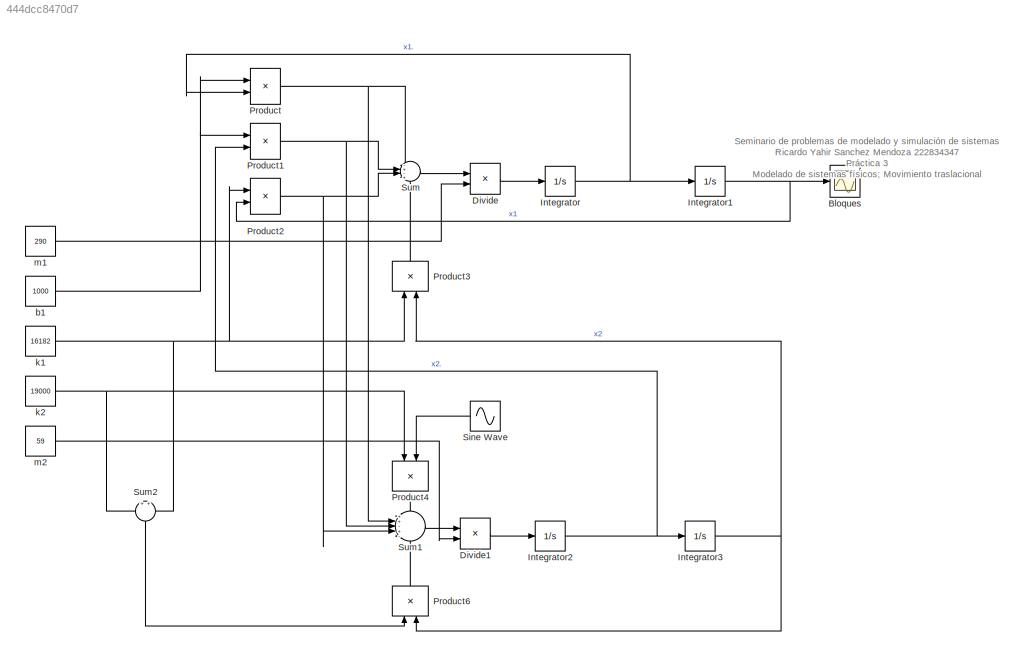
MODEL slx_444dcc8470d7
KIND model
CONFIG AbsTol = auto
CONFIG EnableMultiTasking = off
CONFIG FixedStep = auto
CONFIG MaxStep = .01
CONFIG MinStep = auto
CONFIG RelTol = 1e-3
CONFIG SampleTimeConstraint = Unconstrained
CONFIG SolverName = VariableStepAuto
CONFIG StartTime = 0.0
CONFIG StopTime = 15
BLOCK [Scope] Bloques
  Floating = off
  NumInputPorts = 1
  ScopeSpecificationString = Simulink.scopes.TimeScopeBlockCfg('CurrentConfiguration', extmgr.ConfigurationSet(extmgr.Configuration('Core','General UI',true),extmgr.Configuration('Core','Source UI',true),extmgr.Configuration('Sources','WiredSimulink',true),extmgr.Configuration('Visuals','Time Domain',true,'SerializedDisplays',{struct('MinYLimReal','-0.00453','MaxYLimReal','0.00561','YLabelReal','','MinYLimMag','0.00000','MaxY...<+1471ch>
BLOCK [Product] Divide
  Inputs = */
BLOCK [Product] Divide1
  Inputs = */
BLOCK [Integrator] Integrator
BLOCK [Integrator] Integrator1
BLOCK [Integrator] Integrator2
BLOCK [Integrator] Integrator3
BLOCK [Product] Product
BLOCK [Product] Product1
BLOCK [Product] Product2
BLOCK [Product] Product3
  NameLocation = right
BLOCK [Product] Product4
  NameLocation = left
BLOCK [Product] Product6
  NameLocation = right
BLOCK [Sin] Sine Wave
  Amplitude = .05
  Frequency = 20*pi
  NameLocation = top
  SampleTime = 0
BLOCK [Sum] Sum
  Inputs = -+-+
BLOCK [Sum] Sum1
  Inputs = ++-+-
BLOCK [Sum] Sum2
  NameLocation = left
BLOCK [Constant] b1 
  Value = 1000
BLOCK [Constant] k1 
  Value = 16182
BLOCK [Constant] k2
  Value = 19000
BLOCK [Constant] m1
  Value = 290
BLOCK [Constant] m2
  Value = 59
ANNOTATION (root): Seminario de problemas de modelado y simulación de sistemas Ricardo Yahir Sanchez Mendoza 222834347 Práctica 3 Modelado de sistemas físicos; Movimiento traslacional
LINE Divide1:1 -> Integrator2:1
LINE Divide:1 -> Integrator:1
NET Integrator1:1 -> Bloques:1, Product2:2
NET Integrator2:1 -> Integrator3:1, Product1:2
NET Integrator3:1 -> Product3:2, Product6:2
NET Integrator:1 -> Integrator1:1, Product:2
NET Product1:1 -> Sum1:3, Sum:2
NET Product2:1 -> Sum1:4, Sum:3
LINE Product3:1 -> Sum:4
LINE Product4:1 -> Sum1:1
LINE Product6:1 -> Sum1:5
NET Product:1 -> Sum1:2, Sum:1
LINE Sine Wave:1 -> Product4:2
LINE Sum1:1 -> Divide1:1
LINE Sum2:1 -> Product6:1
LINE Sum:1 -> Divide:1
NET b1 :1 -> Product1:1, Product:1
NET k1 :1 -> Product2:1, Product3:1, Sum2:2
NET k2:1 -> Product4:1, Sum2:1
LINE m1:1 -> Divide:2
LINE m2:1 -> Divide1:2
note: NET lines group one-source signal fan-out (src -> all destinations, sorted); 1:1 wires keep LINE
